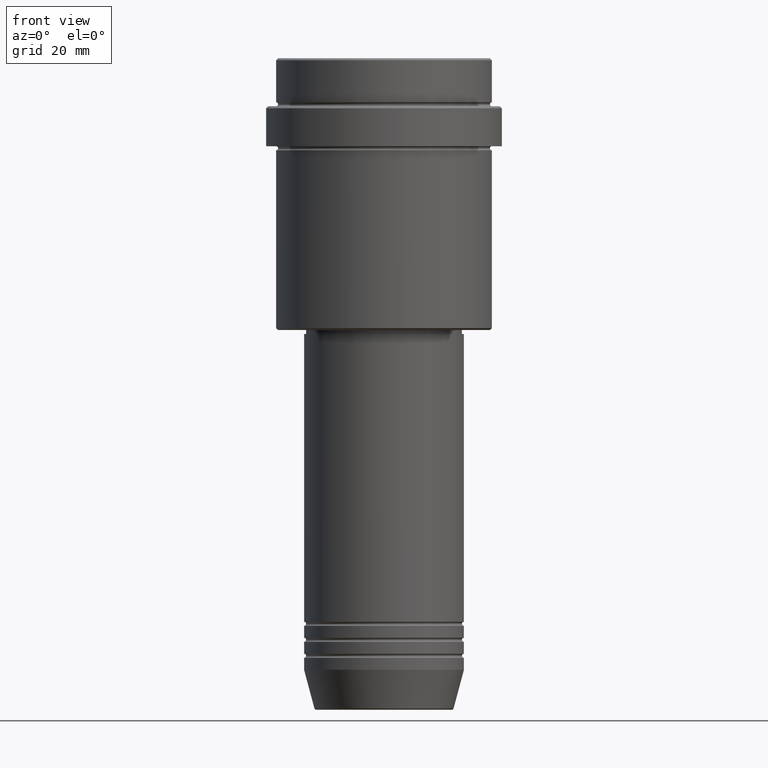
[diagram: clean part render]
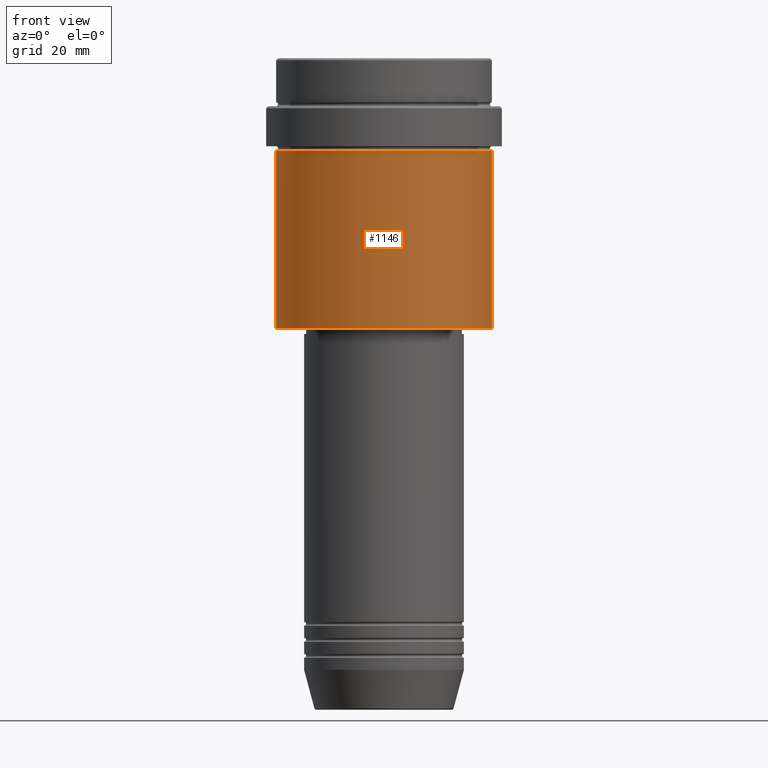
[diagram: same view with one face highlighted and labeled with its STEP entity id]
A machine part, front view. The second image highlights one B-rep face of the part: STEP entity #1146.
In plain terms, the highlighted cylindrical surface (partial cylindrical patch) has radius 27 mm, axis along (-0, -0, 1).
Its self-contained STEP definition (entity closure, byte-faithful):
#24 = VERTEX_POINT ( 'NONE', #1314 ) ;
#90 = EDGE_CURVE ( 'NONE', #372, #24, #253, .T. ) ;
#107 = DIRECTION ( 'NONE',  ( -1.000000000000000000, 0.000000000000000000, 0.000000000000000000 ) ) ;
#204 = DIRECTION ( 'NONE',  ( -0.000000000000000000, -0.000000000000000000, 1.000000000000000000 ) ) ;
#206 = FACE_OUTER_BOUND ( 'NONE', #821, .T. ) ;
#207 = ORIENTED_EDGE ( 'NONE', *, *, #445, .T. ) ;
#231 = VERTEX_POINT ( 'NONE', #1044 ) ;
#245 = DIRECTION ( 'NONE',  ( -0.000000000000000000, -0.000000000000000000, 1.000000000000000000 ) ) ;
#253 = LINE ( 'NONE', #346, #930 ) ;
#271 = AXIS2_PLACEMENT_3D ( 'NONE', #277, #1398, #374 ) ;
#277 = CARTESIAN_POINT ( 'NONE',  ( 0.000000000000000000, 0.000000000000000000, 0.000000000000000000 ) ) ;
#297 = CARTESIAN_POINT ( 'NONE',  ( 27.00000000000000355, 0.000000000000000000, -67.49999999999998579 ) ) ;
#329 = VERTEX_POINT ( 'NONE', #297 ) ;
#346 = CARTESIAN_POINT ( 'NONE',  ( -27.00000000000000355, 3.306546357697854128E-15, 0.000000000000000000 ) ) ;
#372 = VERTEX_POINT ( 'NONE', #444 ) ;
#374 = DIRECTION ( 'NONE',  ( 1.000000000000000000, 0.000000000000000000, 0.000000000000000000 ) ) ;
#409 = CYLINDRICAL_SURFACE ( 'NONE', #271, 27.00000000000000355 ) ;
#444 = CARTESIAN_POINT ( 'NONE',  ( -27.00000000000000355, 3.306546357697854128E-15, -67.49999999999998579 ) ) ;
#445 = EDGE_CURVE ( 'NONE', #329, #231, #735, .T. ) ;
#471 = ORIENTED_EDGE ( 'NONE', *, *, #758, .F. ) ;
#484 = CIRCLE ( 'NONE', #506, 27.00000000000000355 ) ;
#506 = AXIS2_PLACEMENT_3D ( 'NONE', #954, #960, #107 ) ;
#531 = ORIENTED_EDGE ( 'NONE', *, *, #955, .T. ) ;
#589 = CARTESIAN_POINT ( 'NONE',  ( 0.000000000000000000, 0.000000000000000000, -23.00000000000000000 ) ) ;
#735 = LINE ( 'NONE', #1176, #1214 ) ;
#758 = EDGE_CURVE ( 'NONE', #24, #231, #1288, .T. ) ;
#821 = EDGE_LOOP ( 'NONE', ( #1326, #531, #207, #471 ) ) ;
#930 = VECTOR ( 'NONE', #245, 1000.000000000000000 ) ;
#954 = CARTESIAN_POINT ( 'NONE',  ( 0.000000000000000000, 0.000000000000000000, -67.49999999999998579 ) ) ;
#955 = EDGE_CURVE ( 'NONE', #372, #329, #484, .T. ) ;
#960 = DIRECTION ( 'NONE',  ( -0.000000000000000000, -0.000000000000000000, 1.000000000000000000 ) ) ;
#1043 = DIRECTION ( 'NONE',  ( -0.000000000000000000, -0.000000000000000000, 1.000000000000000000 ) ) ;
#1044 = CARTESIAN_POINT ( 'NONE',  ( 27.00000000000000355, 0.000000000000000000, -23.00000000000000000 ) ) ;
#1146 = ADVANCED_FACE ( 'NONE', ( #206 ), #409, .T. ) ;
#1176 = CARTESIAN_POINT ( 'NONE',  ( 27.00000000000000355, 0.000000000000000000, 0.000000000000000000 ) ) ;
#1214 = VECTOR ( 'NONE', #204, 1000.000000000000000 ) ;
#1260 = DIRECTION ( 'NONE',  ( 1.000000000000000000, 0.000000000000000000, 0.000000000000000000 ) ) ;
#1288 = CIRCLE ( 'NONE', #1375, 27.00000000000000355 ) ;
#1314 = CARTESIAN_POINT ( 'NONE',  ( -27.00000000000000355, 3.306546357697854128E-15, -23.00000000000000000 ) ) ;
#1326 = ORIENTED_EDGE ( 'NONE', *, *, #90, .F. ) ;
#1375 = AXIS2_PLACEMENT_3D ( 'NONE', #589, #1043, #1260 ) ;
#1398 = DIRECTION ( 'NONE',  ( -0.000000000000000000, -0.000000000000000000, 1.000000000000000000 ) ) ;